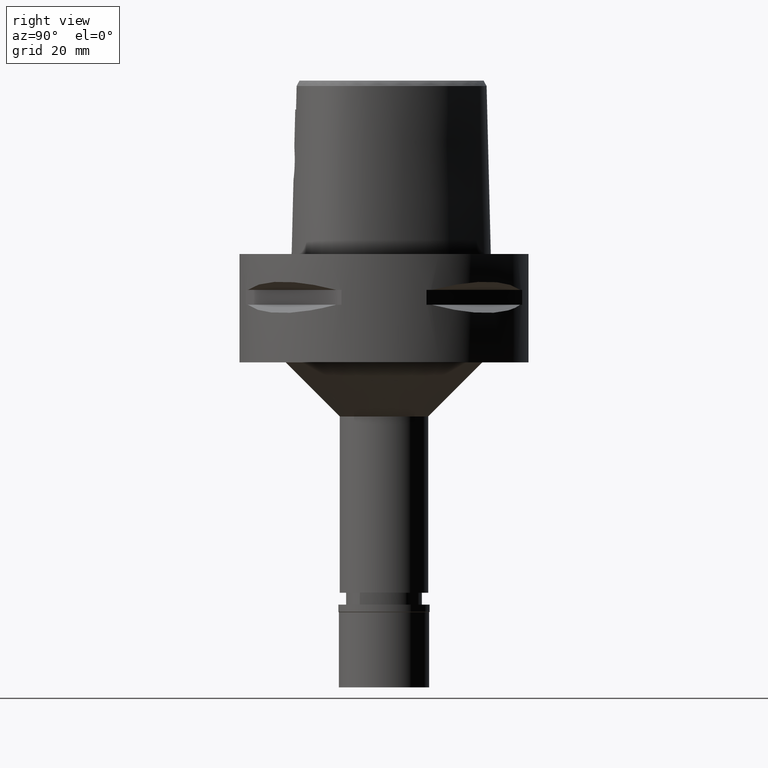
[diagram: clean part render]
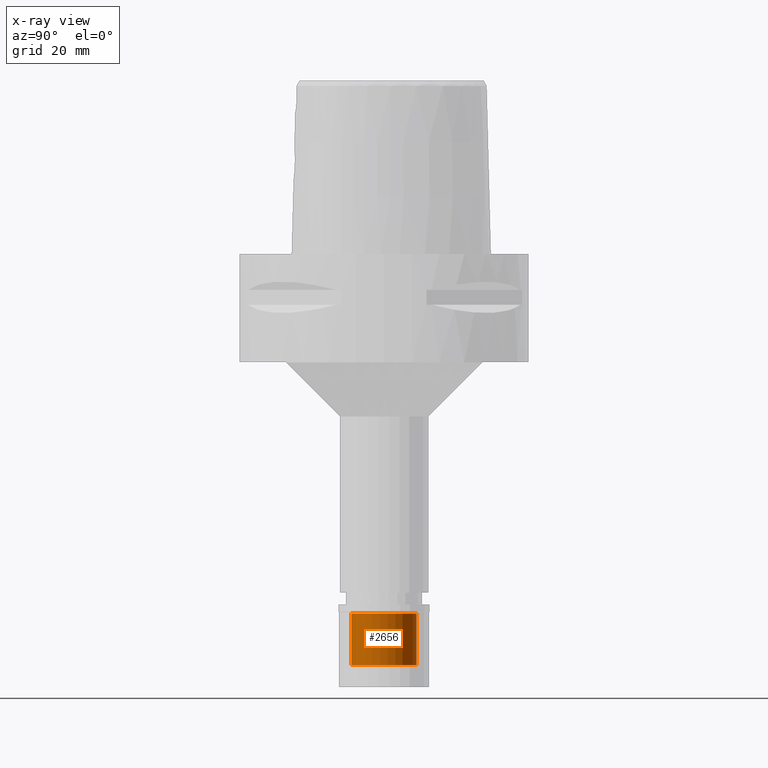
[diagram: x-ray — body ghosted, one internal face saturated and labeled with its STEP entity id]
A machine part, right view, then the same camera in x-ray: the body is ghosted and one INTERNAL B-rep face — a face not visible from any outside direction — is saturated and labeled: STEP entity #2656.
In plain terms, the highlighted cylindrical surface (edge-blend (fillet) strip) has radius 9 mm, axis along (0, 0, -1).
Its self-contained STEP definition (entity closure, byte-faithful):
#1 = CARTESIAN_POINT ( 'NONE',  ( 0.0000000000000000000, 9.000000000000000000, -16.69999999999999929 ) ) ;
#92 = VECTOR ( 'NONE', #792, 1000.000000000000000 ) ;
#97 = AXIS2_PLACEMENT_3D ( 'NONE', #210, #2997, #3050 ) ;
#210 = CARTESIAN_POINT ( 'NONE',  ( 0.0000000000000000000, 0.0000000000000000000, -16.69999999999999929 ) ) ;
#333 = ORIENTED_EDGE ( 'NONE', *, *, #3108, .F. ) ;
#356 = VERTEX_POINT ( 'NONE', #816 ) ;
#395 = DIRECTION ( 'NONE',  ( 0.0000000000000000000, 0.0000000000000000000, 1.000000000000000000 ) ) ;
#407 = LINE ( 'NONE', #1, #92 ) ;
#708 = ORIENTED_EDGE ( 'NONE', *, *, #2005, .T. ) ;
#792 = DIRECTION ( 'NONE',  ( 0.0000000000000000000, 0.0000000000000000000, 1.000000000000000000 ) ) ;
#801 = CARTESIAN_POINT ( 'NONE',  ( 0.0000000000000000000, 9.000000000000000000, -2.500000000000000000 ) ) ;
#816 = CARTESIAN_POINT ( 'NONE',  ( 0.0000000000000000000, -9.000000000000000000, -16.69999999999999929 ) ) ;
#924 = CARTESIAN_POINT ( 'NONE',  ( 0.0000000000000000000, -9.000000000000000000, -2.500000000000000000 ) ) ;
#936 = ORIENTED_EDGE ( 'NONE', *, *, #1056, .T. ) ;
#988 = VERTEX_POINT ( 'NONE', #3862 ) ;
#1056 = EDGE_CURVE ( 'NONE', #356, #2173, #4994, .T. ) ;
#1142 = DIRECTION ( 'NONE',  ( 0.0000000000000000000, 0.0000000000000000000, 1.000000000000000000 ) ) ;
#1577 = DIRECTION ( 'NONE',  ( 0.0000000000000000000, 0.0000000000000000000, -1.000000000000000000 ) ) ;
#2005 = EDGE_CURVE ( 'NONE', #2173, #2068, #2399, .T. ) ;
#2027 = CARTESIAN_POINT ( 'NONE',  ( 0.0000000000000000000, 0.0000000000000000000, 0.0000000000000000000 ) ) ;
#2068 = VERTEX_POINT ( 'NONE', #801 ) ;
#2173 = VERTEX_POINT ( 'NONE', #924 ) ;
#2399 = CIRCLE ( 'NONE', #2805, 9.000000000000000000 ) ;
#2421 = CARTESIAN_POINT ( 'NONE',  ( 0.0000000000000000000, 0.0000000000000000000, -2.500000000000000000 ) ) ;
#2656 = ADVANCED_FACE ( 'NONE', ( #4740 ), #4375, .F. ) ;
#2805 = AXIS2_PLACEMENT_3D ( 'NONE', #2421, #395, #3609 ) ;
#2997 = DIRECTION ( 'NONE',  ( 0.0000000000000000000, 0.0000000000000000000, -1.000000000000000000 ) ) ;
#3050 = DIRECTION ( 'NONE',  ( 0.0000000000000000000, 1.000000000000000000, 0.0000000000000000000 ) ) ;
#3108 = EDGE_CURVE ( 'NONE', #988, #2068, #407, .T. ) ;
#3160 = CIRCLE ( 'NONE', #97, 9.000000000000000000 ) ;
#3171 = DIRECTION ( 'NONE',  ( 0.0000000000000000000, -1.000000000000000000, 0.0000000000000000000 ) ) ;
#3318 = EDGE_CURVE ( 'NONE', #988, #356, #3160, .T. ) ;
#3609 = DIRECTION ( 'NONE',  ( 0.0000000000000000000, -1.000000000000000000, 0.0000000000000000000 ) ) ;
#3862 = CARTESIAN_POINT ( 'NONE',  ( 0.0000000000000000000, 9.000000000000000000, -16.69999999999999929 ) ) ;
#3931 = ORIENTED_EDGE ( 'NONE', *, *, #3318, .T. ) ;
#4106 = VECTOR ( 'NONE', #1142, 1000.000000000000000 ) ;
#4375 = CYLINDRICAL_SURFACE ( 'NONE', #4380, 9.000000000000000000 ) ;
#4380 = AXIS2_PLACEMENT_3D ( 'NONE', #2027, #1577, #3171 ) ;
#4464 = EDGE_LOOP ( 'NONE', ( #3931, #936, #708, #333 ) ) ;
#4740 = FACE_OUTER_BOUND ( 'NONE', #4464, .T. ) ;
#4994 = LINE ( 'NONE', #5052, #4106 ) ;
#5052 = CARTESIAN_POINT ( 'NONE',  ( 0.0000000000000000000, -9.000000000000000000, -16.69999999999999929 ) ) ;